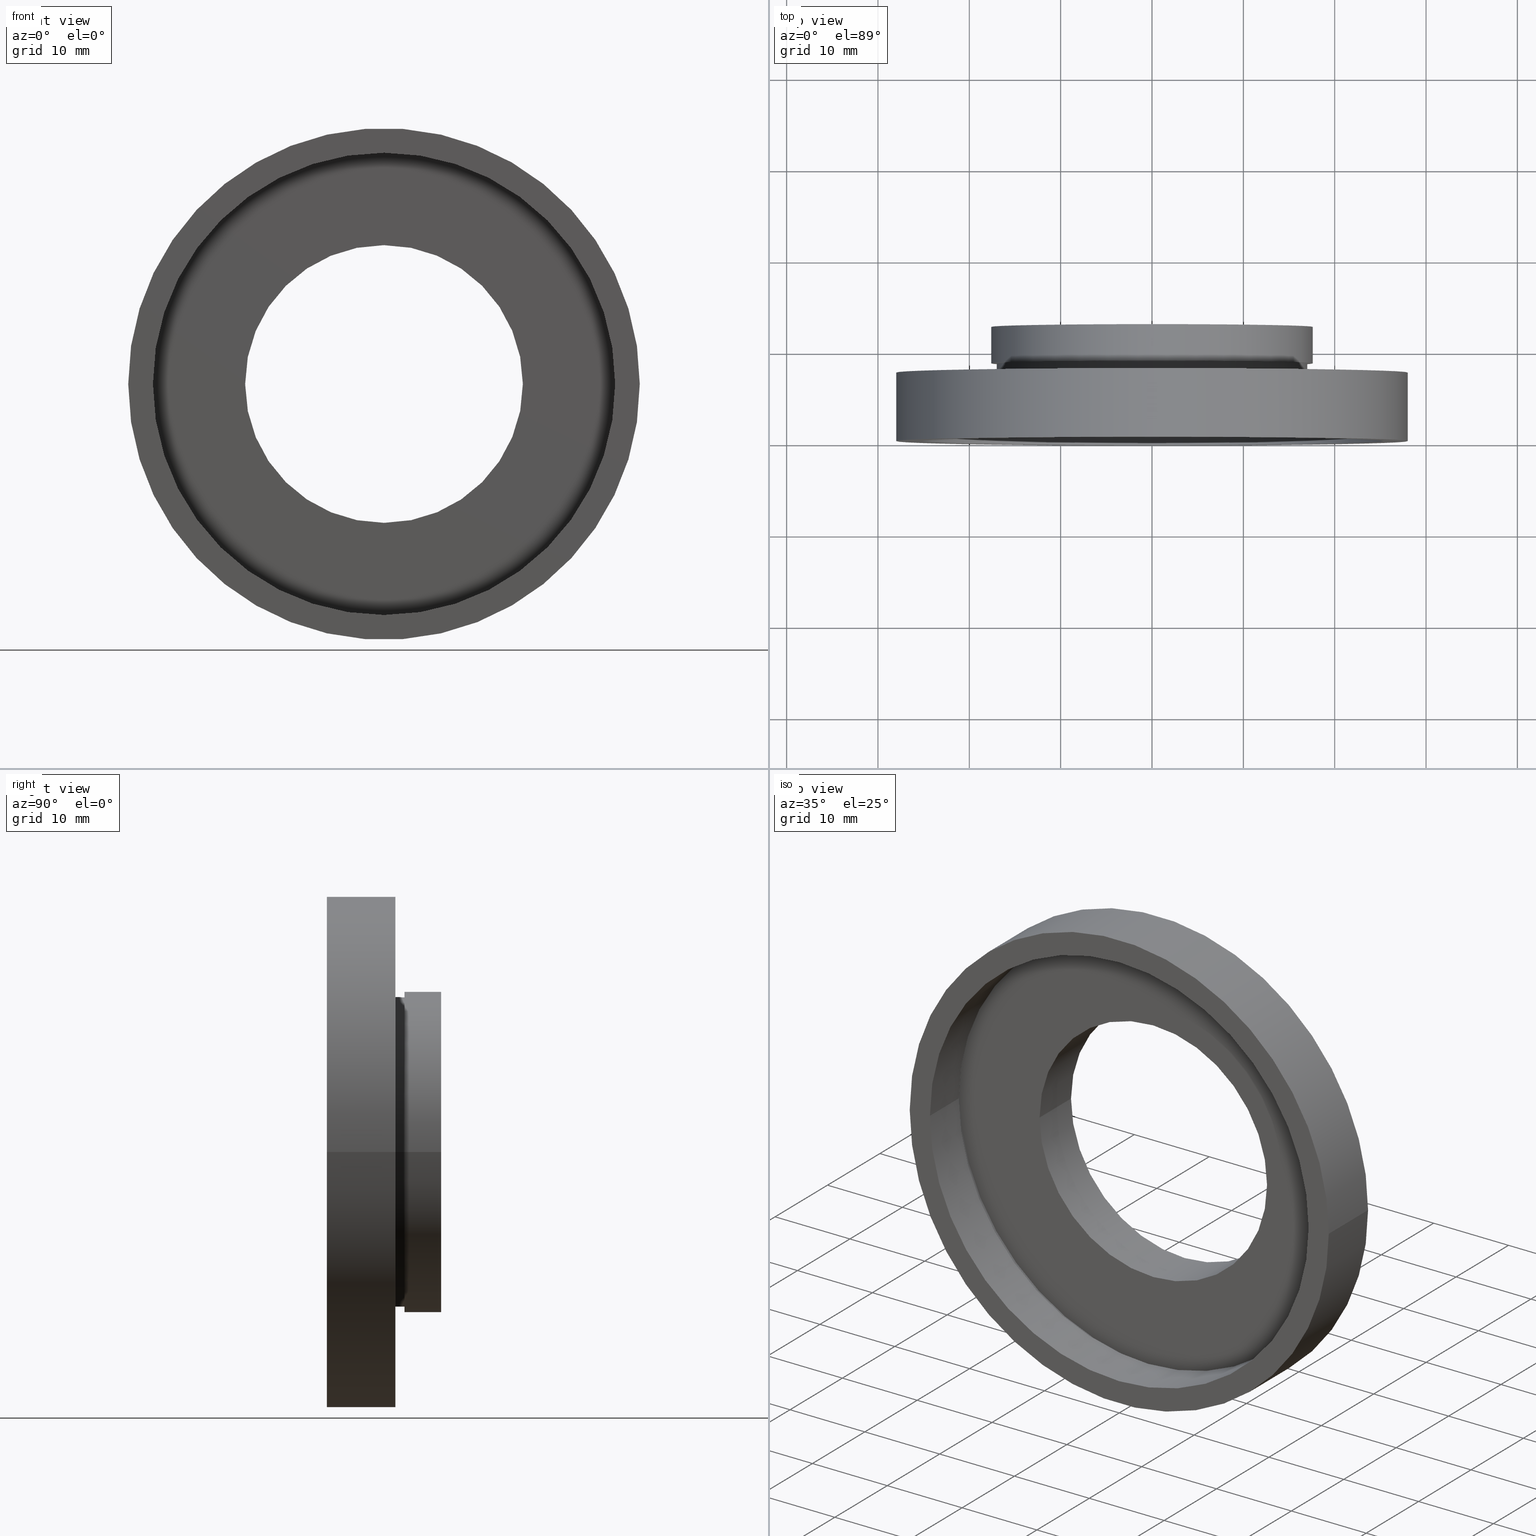
[diagram: canonical four-view strip — front | top / right | iso, engineering-drawing reading convention]
A machine part, canonical four-view strip (front | top / right | iso — engineering-drawing reading convention). The complete STEP part file that produces these views, byte-faithful:
ISO-10303-21;
HEADER;
FILE_DESCRIPTION (( 'STEP AP214' ),
    '1' );
FILE_NAME ('504098.STEP',
    '2019-10-08T03:12:28',
    ( '' ),
    ( '' ),
    'SwSTEP 2.0',
    'SolidWorks 2016',
    '' );
FILE_SCHEMA (( 'AUTOMOTIVE_DESIGN' ));
ENDSEC;

DATA;
#1 = CARTESIAN_POINT ( 'NONE',  ( 2.067940818438636500E-015, -3.469446951953614200E-015, 0.0000000000000000000 ) ) ;
#2 = ORIENTED_EDGE ( 'NONE', *, *, #328, .T. ) ;
#3 = ORIENTED_EDGE ( 'NONE', *, *, #522, .F. ) ;
#4 = ORIENTED_EDGE ( 'NONE', *, *, #616, .F. ) ;
#5 = CARTESIAN_POINT ( 'NONE',  ( -17.00000000000000000, 16.88601823708207300, 0.0000000000000000000 ) ) ;
#6 = SURFACE_STYLE_USAGE ( .BOTH. , #241 ) ;
#7 = DIRECTION ( 'NONE',  ( -1.000000000000000000, -1.336973777246094200E-016, 0.0000000000000000000 ) ) ;
#8 = ORIENTED_EDGE ( 'NONE', *, *, #285, .F. ) ;
#9 = ORIENTED_EDGE ( 'NONE', *, *, #412, .T. ) ;
#10 = DIRECTION ( 'NONE',  ( -1.000000000000000000, -2.282530889443167000E-016, 0.0000000000000000000 ) ) ;
#11 = PRESENTATION_STYLE_ASSIGNMENT (( #524 ) ) ;
#12 = VECTOR ( 'NONE', #71, 1000.000000000000000 ) ;
#13 = FACE_OUTER_BOUND ( 'NONE', #315, .T. ) ;
#14 = CARTESIAN_POINT ( 'NONE',  ( 5.371323195044474300E-016, 12.49999999999999600, 0.0000000000000000000 ) ) ;
#15 = AXIS2_PLACEMENT_3D ( 'NONE', #460, #477, #181 ) ;
#16 = DIRECTION ( 'NONE',  ( -1.224646799147351000E-016, 1.000000000000000000, -0.0000000000000000000 ) ) ;
#17 = ADVANCED_FACE ( 'NONE', ( #570, #301 ), #167, .F. ) ;
#18 =( GEOMETRIC_REPRESENTATION_CONTEXT ( 3 ) GLOBAL_UNCERTAINTY_ASSIGNED_CONTEXT ( ( #489 ) ) GLOBAL_UNIT_ASSIGNED_CONTEXT ( ( #327, #427, #429 ) ) REPRESENTATION_CONTEXT ( 'NONE', 'WORKASPACE' ) );
#19 = ORIENTED_EDGE ( 'NONE', *, *, #358, .T. ) ;
#20 = ORIENTED_EDGE ( 'NONE', *, *, #285, .T. ) ;
#21 =( NAMED_UNIT ( * ) PLANE_ANGLE_UNIT ( ) SI_UNIT ( $, .RADIAN. ) );
#22 = ORIENTED_EDGE ( 'NONE', *, *, #381, .F. ) ;
#23 = DIRECTION ( 'NONE',  ( -1.224646799147351000E-016, 1.000000000000000000, -0.0000000000000000000 ) ) ;
#24 =( GEOMETRIC_REPRESENTATION_CONTEXT ( 3 ) GLOBAL_UNCERTAINTY_ASSIGNED_CONTEXT ( ( #94 ) ) GLOBAL_UNIT_ASSIGNED_CONTEXT ( ( #93, #337, #432 ) ) REPRESENTATION_CONTEXT ( 'NONE', 'WORKASPACE' ) );
#25 = PRESENTATION_LAYER_ASSIGNMENT (  '', '', ( #86 ) ) ;
#26 = EDGE_CURVE ( 'NONE', #415, #554, #163, .T. ) ;
#27 = CARTESIAN_POINT ( 'NONE',  ( 25.94999999999999900, 6.499999999999999100, 3.177958443787381900E-015 ) ) ;
#28 = EDGE_LOOP ( 'NONE', ( #361, #82 ) ) ;
#29 = PRODUCT_DEFINITION ( 'δ֪', '', #217, #594 ) ;
#30 = CIRCLE ( 'NONE', #487, 17.00000000000000000 ) ;
#31 = FILL_AREA_STYLE ('',( #74 ) ) ;
#32 = CARTESIAN_POINT ( 'NONE',  ( 25.30000000000000400, 16.88601823708208000, 3.098356401842804300E-015 ) ) ;
#33 = ORIENTED_EDGE ( 'NONE', *, *, #604, .T. ) ;
#34 = ORIENTED_EDGE ( 'NONE', *, *, #513, .T. ) ;
#35 = ORIENTED_EDGE ( 'NONE', *, *, #531, .T. ) ;
#36 = ORIENTED_EDGE ( 'NONE', *, *, #295, .F. ) ;
#37 = PLANE ( 'NONE',  #158 ) ;
#38 = EDGE_LOOP ( 'NONE', ( #34, #43 ) ) ;
#39 = FILL_AREA_STYLE_COLOUR ( '', #613 ) ;
#40 = AXIS2_PLACEMENT_3D ( 'NONE', #517, #621, #126 ) ;
#41 = DIRECTION ( 'NONE',  ( -1.000000000000000000, -1.224646799147351200E-016, 0.0000000000000000000 ) ) ;
#42 = CARTESIAN_POINT ( 'NONE',  ( 5.371323195044474300E-016, 12.49999999999999600, 0.0000000000000000000 ) ) ;
#43 = ORIENTED_EDGE ( 'NONE', *, *, #171, .T. ) ;
#44 = DIRECTION ( 'NONE',  ( -1.000000000000000000, -1.141265444721583500E-016, 0.0000000000000000000 ) ) ;
#45 = LINE ( 'NONE', #606, #555 ) ;
#46 = FACE_OUTER_BOUND ( 'NONE', #119, .T. ) ;
#47 = DIRECTION ( 'NONE',  ( -1.224646799147351000E-016, 1.000000000000000000, -0.0000000000000000000 ) ) ;
#48 = DIRECTION ( 'NONE',  ( -1.000000000000000000, -1.224646799147351000E-016, 0.0000000000000000000 ) ) ;
#49 = PRODUCT_RELATED_PRODUCT_CATEGORY ( 'part', '', ( #581 ) ) ;
#50 = FILL_AREA_STYLE ('',( #333 ) ) ;
#51 = EDGE_LOOP ( 'NONE', ( #4, #331 ) ) ;
#52 = LINE ( 'NONE', #32, #268 ) ;
#53 = EDGE_CURVE ( 'NONE', #310, #161, #503, .T. ) ;
#54 = DIRECTION ( 'NONE',  ( -1.000000000000000000, -1.371322905910519200E-016, 0.0000000000000000000 ) ) ;
#55 = ADVANCED_FACE ( 'NONE', ( #173 ), #375, .T. ) ;
#56 = MECHANICAL_DESIGN_GEOMETRIC_PRESENTATION_REPRESENTATION (  '', ( #86 ), #383 ) ;
#57 = CARTESIAN_POINT ( 'NONE',  ( 15.20000000000000100, 6.499999999999999100, 1.861463134703977100E-015 ) ) ;
#58 = VECTOR ( 'NONE', #557, 1000.000000000000000 ) ;
#59 = EDGE_CURVE ( 'NONE', #307, #499, #445, .T. ) ;
#60 = LINE ( 'NONE', #395, #365 ) ;
#61 =( NAMED_UNIT ( * ) PLANE_ANGLE_UNIT ( ) SI_UNIT ( $, .RADIAN. ) );
#62 = DIRECTION ( 'NONE',  ( -1.224646799147351000E-016, 1.000000000000000000, -0.0000000000000000000 ) ) ;
#63 = ORIENTED_EDGE ( 'NONE', *, *, #467, .F. ) ;
#64 = CARTESIAN_POINT ( 'NONE',  ( -17.00000000000000000, 8.499999999999996400, 0.0000000000000000000 ) ) ;
#65 = FACE_BOUND ( 'NONE', #129, .T. ) ;
#66 = CYLINDRICAL_SURFACE ( 'NONE', #443, 25.30000000000000400 ) ;
#67 = CARTESIAN_POINT ( 'NONE',  ( 2.067940818438636500E-015, -3.469446951953614200E-015, 0.0000000000000000000 ) ) ;
#68 = PRESENTATION_LAYER_ASSIGNMENT (  '', '', ( #140 ) ) ;
#69 = DIRECTION ( 'NONE',  ( -1.224646799147351000E-016, 1.000000000000000000, -0.0000000000000000000 ) ) ;
#70 = AXIS2_PLACEMENT_3D ( 'NONE', #373, #47, #424 ) ;
#71 = DIRECTION ( 'NONE',  ( -1.224646799147351000E-016, 1.000000000000000000, -0.0000000000000000000 ) ) ;
#72 = ORIENTED_EDGE ( 'NONE', *, *, #276, .T. ) ;
#73 = CARTESIAN_POINT ( 'NONE',  ( 17.60000000000000100, 12.49999999999999800, 2.155378366499341600E-015 ) ) ;
#74 = FILL_AREA_STYLE_COLOUR ( '', #382 ) ;
#75 = DIRECTION ( 'NONE',  ( -1.224646799147351000E-016, 1.000000000000000000, 0.0000000000000000000 ) ) ;
#76 = FILL_AREA_STYLE_COLOUR ( '', #585 ) ;
#77 = ORIENTED_EDGE ( 'NONE', *, *, #295, .T. ) ;
#78 = ORIENTED_EDGE ( 'NONE', *, *, #590, .F. ) ;
#79 = LINE ( 'NONE', #411, #322 ) ;
#80 = DIRECTION ( 'NONE',  ( -1.000000000000000000, -9.856383386231857600E-017, 0.0000000000000000000 ) ) ;
#81 = DIRECTION ( 'NONE',  ( -1.224646799147351000E-016, 1.000000000000000000, -0.0000000000000000000 ) ) ;
#82 = ORIENTED_EDGE ( 'NONE', *, *, #456, .F. ) ;
#83 = ORIENTED_EDGE ( 'NONE', *, *, #501, .T. ) ;
#84 = SURFACE_STYLE_USAGE ( .BOTH. , #378 ) ;
#85 = EDGE_CURVE ( 'NONE', #258, #212, #292, .T. ) ;
#86 = STYLED_ITEM ( 'NONE', ( #11 ), #234 ) ;
#87 = CARTESIAN_POINT ( 'NONE',  ( 0.0000000000000000000, 16.88601823708207700, 0.0000000000000000000 ) ) ;
#88 = SURFACE_SIDE_STYLE ('',( #343 ) ) ;
#89 = DIRECTION ( 'NONE',  ( -1.224646799147351000E-016, 1.000000000000000000, -0.0000000000000000000 ) ) ;
#90 = ORIENTED_EDGE ( 'NONE', *, *, #467, .T. ) ;
#91 = FACE_BOUND ( 'NONE', #38, .T. ) ;
#92 = CIRCLE ( 'NONE', #164, 25.94999999999999900 ) ;
#93 =( LENGTH_UNIT ( ) NAMED_UNIT ( * ) SI_UNIT ( .MILLI., .METRE. ) );
#94 = UNCERTAINTY_MEASURE_WITH_UNIT (LENGTH_MEASURE( 1.000000000000000100E-005 ), #93, 'distance_accuracy_value', 'NONE');
#95 =( LENGTH_UNIT ( ) NAMED_UNIT ( * ) SI_UNIT ( .MILLI., .METRE. ) );
#96 =( GEOMETRIC_REPRESENTATION_CONTEXT ( 3 ) GLOBAL_UNCERTAINTY_ASSIGNED_CONTEXT ( ( #139 ) ) GLOBAL_UNIT_ASSIGNED_CONTEXT ( ( #457, #21, #314 ) ) REPRESENTATION_CONTEXT ( 'NONE', 'WORKASPACE' ) );
#97 = CARTESIAN_POINT ( 'NONE',  ( -15.20000000000000100, 12.49999999999999500, 0.0000000000000000000 ) ) ;
#98 = ORIENTED_EDGE ( 'NONE', *, *, #513, .F. ) ;
#99 = STYLED_ITEM ( 'NONE', ( #154 ), #174 ) ;
#100 = DIRECTION ( 'NONE',  ( -1.000000000000000000, -1.336973777246094200E-016, 0.0000000000000000000 ) ) ;
#101 = DIRECTION ( 'NONE',  ( -1.224646799147351000E-016, 1.000000000000000000, -0.0000000000000000000 ) ) ;
#102 = AXIS2_PLACEMENT_3D ( 'NONE', #67, #399, #447 ) ;
#103 = CARTESIAN_POINT ( 'NONE',  ( 1.149455719078123100E-015, 7.499999999999996400, 0.0000000000000000000 ) ) ;
#104 = SURFACE_SIDE_STYLE ('',( #480 ) ) ;
#105 =( GEOMETRIC_REPRESENTATION_CONTEXT ( 3 ) GLOBAL_UNCERTAINTY_ASSIGNED_CONTEXT ( ( #374 ) ) GLOBAL_UNIT_ASSIGNED_CONTEXT ( ( #610, #224, #218 ) ) REPRESENTATION_CONTEXT ( 'NONE', 'WORKASPACE' ) );
#106 = CARTESIAN_POINT ( 'NONE',  ( 28.00000000000000400, -4.043591434103126100E-017, 3.429011037612589700E-015 ) ) ;
#107 = EDGE_CURVE ( 'NONE', #252, #161, #207, .T. ) ;
#108 = CARTESIAN_POINT ( 'NONE',  ( 2.067940818438636500E-015, -3.469446951953614200E-015, 0.0000000000000000000 ) ) ;
#109 = AXIS2_PLACEMENT_3D ( 'NONE', #468, #462, #599 ) ;
#110 = VERTEX_POINT ( 'NONE', #566 ) ;
#111 = CARTESIAN_POINT ( 'NONE',  ( 17.60000000000000100, 16.88601823708208000, 2.155378366499341600E-015 ) ) ;
#112 = CYLINDRICAL_SURFACE ( 'NONE', #261, 17.60000000000000100 ) ;
#113 = CYLINDRICAL_SURFACE ( 'NONE', #574, 15.20000000000000100 ) ;
#114 = PRESENTATION_LAYER_ASSIGNMENT (  '', '', ( #434 ) ) ;
#115 = CARTESIAN_POINT ( 'NONE',  ( 0.0000000000000000000, 16.88601823708207700, 0.0000000000000000000 ) ) ;
#116 = EDGE_CURVE ( 'NONE', #275, #225, #572, .T. ) ;
#117 = DIRECTION ( 'NONE',  ( -1.224646799147351000E-016, 1.000000000000000000, -0.0000000000000000000 ) ) ;
#118 = EDGE_LOOP ( 'NONE', ( #461, #90, #349, #486 ) ) ;
#119 = EDGE_LOOP ( 'NONE', ( #584, #397, #540, #78 ) ) ;
#120 = CARTESIAN_POINT ( 'NONE',  ( 5.371323195044474300E-016, 12.49999999999999600, 0.0000000000000000000 ) ) ;
#121 = CARTESIAN_POINT ( 'NONE',  ( 1.026991039163387700E-015, 8.499999999999998200, 0.0000000000000000000 ) ) ;
#122 = ORIENTED_EDGE ( 'NONE', *, *, #456, .T. ) ;
#123 = CARTESIAN_POINT ( 'NONE',  ( 17.00000000000000000, 8.500000000000000000, 2.081899558550500300E-015 ) ) ;
#124 = DIRECTION ( 'NONE',  ( 1.000000000000000000, 1.224646799147351000E-016, 0.0000000000000000000 ) ) ;
#125 = SURFACE_STYLE_FILL_AREA ( #50 ) ;
#126 = DIRECTION ( 'NONE',  ( -1.000000000000000000, -1.371322905910519200E-016, 0.0000000000000000000 ) ) ;
#127 =( GEOMETRIC_REPRESENTATION_CONTEXT ( 3 ) GLOBAL_UNCERTAINTY_ASSIGNED_CONTEXT ( ( #458 ) ) GLOBAL_UNIT_ASSIGNED_CONTEXT ( ( #95, #483, #247 ) ) REPRESENTATION_CONTEXT ( 'NONE', 'WORKASPACE' ) );
#128 = DIRECTION ( 'NONE',  ( -1.224646799147351000E-016, 1.000000000000000000, -0.0000000000000000000 ) ) ;
#129 = EDGE_LOOP ( 'NONE', ( #20, #607 ) ) ;
#130 = AXIS2_PLACEMENT_3D ( 'NONE', #542, #151, #545 ) ;
#131 = LINE ( 'NONE', #213, #490 ) ;
#132 = VECTOR ( 'NONE', #294, 1000.000000000000000 ) ;
#133 = CARTESIAN_POINT ( 'NONE',  ( 1.149455719078122700E-015, 7.499999999999998200, 0.0000000000000000000 ) ) ;
#134 = EDGE_CURVE ( 'NONE', #161, #310, #453, .T. ) ;
#135 = EDGE_LOOP ( 'NONE', ( #500, #389 ) ) ;
#136 = ORIENTED_EDGE ( 'NONE', *, *, #85, .F. ) ;
#137 = FACE_BOUND ( 'NONE', #380, .T. ) ;
#138 = CARTESIAN_POINT ( 'NONE',  ( 15.20000000000000100, 12.49999999999999800, 1.861463134703977100E-015 ) ) ;
#139 = UNCERTAINTY_MEASURE_WITH_UNIT (LENGTH_MEASURE( 1.000000000000000100E-005 ), #457, 'distance_accuracy_value', 'NONE');
#140 = STYLED_ITEM ( 'NONE', ( #205 ), #420 ) ;
#141 = ADVANCED_FACE ( 'NONE', ( #316 ), #324, .T. ) ;
#142 = SURFACE_SIDE_STYLE ('',( #152 ) ) ;
#143 = ORIENTED_EDGE ( 'NONE', *, *, #276, .F. ) ;
#144 = EDGE_CURVE ( 'NONE', #499, #307, #190, .T. ) ;
#145 = ORIENTED_EDGE ( 'NONE', *, *, #358, .F. ) ;
#146 = FILL_AREA_STYLE ('',( #479 ) ) ;
#147 = COLOUR_RGB ( '',1.000000000000000000, 1.000000000000000000, 1.000000000000000000 ) ;
#148 = DIRECTION ( 'NONE',  ( -1.000000000000000000, -1.239088197126290800E-016, 0.0000000000000000000 ) ) ;
#149 = FILL_AREA_STYLE_COLOUR ( '', #418 ) ;
#150 = EDGE_LOOP ( 'NONE', ( #436, #396, #597, #168 ) ) ;
#151 = DIRECTION ( 'NONE',  ( -1.224646799147351000E-016, 1.000000000000000000, 0.0000000000000000000 ) ) ;
#152 = SURFACE_STYLE_FILL_AREA ( #202 ) ;
#153 = AXIS2_PLACEMENT_3D ( 'NONE', #14, #16, #580 ) ;
#154 = PRESENTATION_STYLE_ASSIGNMENT (( #84 ) ) ;
#155 =( LENGTH_UNIT ( ) NAMED_UNIT ( * ) SI_UNIT ( .MILLI., .METRE. ) );
#156 = STYLED_ITEM ( 'NONE', ( #255 ), #243 ) ;
#157 = DIRECTION ( 'NONE',  ( -1.000000000000000000, -1.971276677246371500E-016, 0.0000000000000000000 ) ) ;
#158 = AXIS2_PLACEMENT_3D ( 'NONE', #273, #421, #124 ) ;
#159 = PLANE ( 'NONE',  #130 ) ;
#160 = ORIENTED_EDGE ( 'NONE', *, *, #59, .T. ) ;
#161 = VERTEX_POINT ( 'NONE', #123 ) ;
#162 = CIRCLE ( 'NONE', #308, 17.60000000000000100 ) ;
#163 = LINE ( 'NONE', #223, #419 ) ;
#164 = AXIS2_PLACEMENT_3D ( 'NONE', #504, #117, #318 ) ;
#165 = DIRECTION ( 'NONE',  ( -1.000000000000000000, -1.141265444721583500E-016, 0.0000000000000000000 ) ) ;
#166 = CARTESIAN_POINT ( 'NONE',  ( 1.026991039163387700E-015, 8.499999999999998200, 0.0000000000000000000 ) ) ;
#167 = PLANE ( 'NONE',  #369 ) ;
#168 = ORIENTED_EDGE ( 'NONE', *, *, #548, .T. ) ;
#169 = ORIENTED_EDGE ( 'NONE', *, *, #264, .T. ) ;
#170 = FACE_BOUND ( 'NONE', #507, .T. ) ;
#171 = EDGE_CURVE ( 'NONE', #257, #546, #246, .T. ) ;
#172 = DIRECTION ( 'NONE',  ( -1.224646799147351000E-016, 1.000000000000000000, -0.0000000000000000000 ) ) ;
#173 = FACE_OUTER_BOUND ( 'NONE', #515, .T. ) ;
#174 = ADVANCED_FACE ( 'NONE', ( #559 ), #230, .F. ) ;
#175 = PLANE ( 'NONE',  #617 ) ;
#176 = DIRECTION ( 'NONE',  ( -1.224646799147351000E-016, 1.000000000000000000, -0.0000000000000000000 ) ) ;
#177 = STYLED_ITEM ( 'NONE', ( #229 ), #444 ) ;
#178 = ADVANCED_FACE ( 'NONE', ( #530 ), #602, .F. ) ;
#179 = ORIENTED_EDGE ( 'NONE', *, *, #228, .T. ) ;
#180 = CIRCLE ( 'NONE', #102, 27.99999999999999600 ) ;
#181 = DIRECTION ( 'NONE',  ( 1.000000000000000000, 0.0000000000000000000, 0.0000000000000000000 ) ) ;
#182 = FACE_BOUND ( 'NONE', #210, .T. ) ;
#183 = DIRECTION ( 'NONE',  ( -1.224646799147351000E-016, 1.000000000000000000, -0.0000000000000000000 ) ) ;
#184 = AXIS2_PLACEMENT_3D ( 'NONE', #618, #89, #232 ) ;
#185 = ORIENTED_EDGE ( 'NONE', *, *, #492, .F. ) ;
#186 = DIRECTION ( 'NONE',  ( -1.000000000000000000, -1.371322905910519200E-016, 0.0000000000000000000 ) ) ;
#187 = ORIENTED_EDGE ( 'NONE', *, *, #616, .T. ) ;
#188 = EDGE_LOOP ( 'NONE', ( #77, #596 ) ) ;
#189 = LINE ( 'NONE', #111, #58 ) ;
#190 = CIRCLE ( 'NONE', #352, 25.30000000000000400 ) ;
#191 = DIRECTION ( 'NONE',  ( -1.000000000000000000, -1.020425574104004100E-016, 0.0000000000000000000 ) ) ;
#192 = MECHANICAL_DESIGN_GEOMETRIC_PRESENTATION_REPRESENTATION (  '', ( #177 ), #280 ) ;
#193 = DIRECTION ( 'NONE',  ( -1.224646799147351000E-016, 1.000000000000000000, -0.0000000000000000000 ) ) ;
#194 = PRESENTATION_LAYER_ASSIGNMENT (  '', '', ( #156 ) ) ;
#195 = DIRECTION ( 'NONE',  ( 1.224646799147351000E-016, -1.000000000000000000, 0.0000000000000000000 ) ) ;
#196 = FACE_OUTER_BOUND ( 'NONE', #118, .T. ) ;
#197 = ORIENTED_EDGE ( 'NONE', *, *, #437, .F. ) ;
#198 = DIRECTION ( 'NONE',  ( -1.224646799147351000E-016, 1.000000000000000000, -0.0000000000000000000 ) ) ;
#199 = AXIS2_PLACEMENT_3D ( 'NONE', #511, #226, #466 ) ;
#200 = ORIENTED_EDGE ( 'NONE', *, *, #561, .T. ) ;
#201 = ORIENTED_EDGE ( 'NONE', *, *, #482, .T. ) ;
#202 = FILL_AREA_STYLE ('',( #149 ) ) ;
#203 = CYLINDRICAL_SURFACE ( 'NONE', #408, 17.00000000000000000 ) ;
#204 = MECHANICAL_DESIGN_GEOMETRIC_PRESENTATION_REPRESENTATION (  '', ( #140 ), #96 ) ;
#205 = PRESENTATION_STYLE_ASSIGNMENT (( #265 ) ) ;
#206 = DIRECTION ( 'NONE',  ( -1.000000000000000000, -1.971276677246371500E-016, 0.0000000000000000000 ) ) ;
#207 = LINE ( 'NONE', #474, #464 ) ;
#208 = STYLED_ITEM ( 'NONE', ( #323 ), #178 ) ;
#209 = SURFACE_STYLE_USAGE ( .BOTH. , #406 ) ;
#210 = EDGE_LOOP ( 'NONE', ( #539, #3 ) ) ;
#211 = CLOSED_SHELL ( 'NONE', ( #55, #485, #444, #306, #372, #178, #448, #243, #289, #400, #614, #174, #298, #303, #17, #231, #608, #141 ) ) ;
#212 = VERTEX_POINT ( 'NONE', #576 ) ;
#213 = CARTESIAN_POINT ( 'NONE',  ( -15.20000000000000100, 16.88601823708207300, 0.0000000000000000000 ) ) ;
#214 = AXIS2_PLACEMENT_3D ( 'NONE', #103, #536, #254 ) ;
#215 = DIRECTION ( 'NONE',  ( -1.224646799147351000E-016, 1.000000000000000000, -0.0000000000000000000 ) ) ;
#216 = AXIS2_PLACEMENT_3D ( 'NONE', #236, #379, #48 ) ;
#217 = PRODUCT_DEFINITION_FORMATION_WITH_SPECIFIED_SOURCE ( '�κ�', '', #581, .NOT_KNOWN. ) ;
#218 =( NAMED_UNIT ( * ) SI_UNIT ( $, .STERADIAN. ) SOLID_ANGLE_UNIT ( ) );
#219 = ORIENTED_EDGE ( 'NONE', *, *, #144, .T. ) ;
#220 = FACE_OUTER_BOUND ( 'NONE', #28, .T. ) ;
#221 = LINE ( 'NONE', #405, #311 ) ;
#222 = CARTESIAN_POINT ( 'NONE',  ( -17.00000000000000000, 7.499999999999996400, 0.0000000000000000000 ) ) ;
#223 = CARTESIAN_POINT ( 'NONE',  ( 27.99999999999999600, 16.88601823708208000, 3.429011037612588900E-015 ) ) ;
#224 =( NAMED_UNIT ( * ) PLANE_ANGLE_UNIT ( ) SI_UNIT ( $, .RADIAN. ) );
#225 = VERTEX_POINT ( 'NONE', #138 ) ;
#226 = DIRECTION ( 'NONE',  ( -1.224646799147351000E-016, 1.000000000000000000, -0.0000000000000000000 ) ) ;
#227 = LINE ( 'NONE', #266, #398 ) ;
#228 = EDGE_CURVE ( 'NONE', #549, #310, #558, .T. ) ;
#229 = PRESENTATION_STYLE_ASSIGNMENT (( #209 ) ) ;
#230 = CYLINDRICAL_SURFACE ( 'NONE', #242, 15.20000000000000100 ) ;
#231 = ADVANCED_FACE ( 'NONE', ( #392 ), #481, .T. ) ;
#232 = DIRECTION ( 'NONE',  ( -1.000000000000000000, -1.020425574104004100E-016, 0.0000000000000000000 ) ) ;
#233 = APPLICATION_CONTEXT ( 'automotive_design' ) ;
#234 = ADVANCED_BREP_SHAPE_REPRESENTATION ( '504098', ( #420, #15 ), #105 ) ;
#235 = AXIS2_PLACEMENT_3D ( 'NONE', #350, #195, #302 ) ;
#236 = CARTESIAN_POINT ( 'NONE',  ( 2.067940818438636500E-015, -3.469446951953614200E-015, 0.0000000000000000000 ) ) ;
#237 = EDGE_LOOP ( 'NONE', ( #297, #22 ) ) ;
#238 = DIRECTION ( 'NONE',  ( -1.224646799147351000E-016, 1.000000000000000000, -0.0000000000000000000 ) ) ;
#239 = AXIS2_PLACEMENT_3D ( 'NONE', #624, #484, #491 ) ;
#240 = PRODUCT_CONTEXT ( 'NONE', #233, 'mechanical' ) ;
#241 = SURFACE_SIDE_STYLE ('',( #277 ) ) ;
#242 = AXIS2_PLACEMENT_3D ( 'NONE', #521, #128, #473 ) ;
#243 = ADVANCED_FACE ( 'NONE', ( #587 ), #66, .F. ) ;
#244 = EDGE_LOOP ( 'NONE', ( #136, #200, #219, #321 ) ) ;
#245 = FACE_OUTER_BOUND ( 'NONE', #150, .T. ) ;
#246 = CIRCLE ( 'NONE', #384, 15.19999999999999900 ) ;
#247 =( NAMED_UNIT ( * ) SI_UNIT ( $, .STERADIAN. ) SOLID_ANGLE_UNIT ( ) );
#248 = PRESENTATION_LAYER_ASSIGNMENT (  '', '', ( #177 ) ) ;
#249 = DIRECTION ( 'NONE',  ( -1.224646799147351000E-016, 1.000000000000000000, -0.0000000000000000000 ) ) ;
#250 = EDGE_CURVE ( 'NONE', #575, #320, #556, .T. ) ;
#251 = ORIENTED_EDGE ( 'NONE', *, *, #144, .F. ) ;
#252 = VERTEX_POINT ( 'NONE', #296 ) ;
#253 = FACE_OUTER_BOUND ( 'NONE', #237, .T. ) ;
#254 = DIRECTION ( 'NONE',  ( -1.000000000000000000, -1.239088197126290800E-016, 0.0000000000000000000 ) ) ;
#255 = PRESENTATION_STYLE_ASSIGNMENT (( #431 ) ) ;
#256 = CARTESIAN_POINT ( 'NONE',  ( -27.99999999999999300, -6.898457989566196800E-015, 0.0000000000000000000 ) ) ;
#257 = VERTEX_POINT ( 'NONE', #57 ) ;
#258 = VERTEX_POINT ( 'NONE', #623 ) ;
#259 = DIRECTION ( 'NONE',  ( -1.224646799147351000E-016, 1.000000000000000000, -0.0000000000000000000 ) ) ;
#260 = EDGE_LOOP ( 'NONE', ( #533, #72, #179, #388 ) ) ;
#261 = AXIS2_PLACEMENT_3D ( 'NONE', #115, #595, #157 ) ;
#262 = COLOUR_RGB ( '',1.000000000000000000, 1.000000000000000000, 1.000000000000000000 ) ;
#263 = SURFACE_SIDE_STYLE ('',( #286 ) ) ;
#264 = EDGE_CURVE ( 'NONE', #549, #252, #30, .T. ) ;
#265 = SURFACE_STYLE_USAGE ( .BOTH. , #263 ) ;
#266 = CARTESIAN_POINT ( 'NONE',  ( -27.99999999999999600, 16.88601823708207300, 0.0000000000000000000 ) ) ;
#267 = EDGE_LOOP ( 'NONE', ( #187, #35, #36, #197 ) ) ;
#268 = VECTOR ( 'NONE', #552, 1000.000000000000000 ) ;
#269 = CARTESIAN_POINT ( 'NONE',  ( 25.30000000000000400, 5.499999999999998200, 3.098356401842804300E-015 ) ) ;
#270 = SURFACE_STYLE_FILL_AREA ( #407 ) ;
#271 = AXIS2_PLACEMENT_3D ( 'NONE', #498, #101, #299 ) ;
#272 = COLOUR_RGB ( '',1.000000000000000000, 1.000000000000000000, 1.000000000000000000 ) ;
#273 = CARTESIAN_POINT ( 'NONE',  ( 17.00000000000000000, 7.499999999999999100, 0.0000000000000000000 ) ) ;
#274 = AXIS2_PLACEMENT_3D ( 'NONE', #519, #510, #553 ) ;
#275 = VERTEX_POINT ( 'NONE', #97 ) ;
#276 = EDGE_CURVE ( 'NONE', #252, #549, #312, .T. ) ;
#277 = SURFACE_STYLE_FILL_AREA ( #525 ) ;
#278 = FILL_AREA_STYLE ('',( #39 ) ) ;
#279 = CARTESIAN_POINT ( 'NONE',  ( -28.00000000000000000, 7.499999999999992900, 0.0000000000000000000 ) ) ;
#280 =( GEOMETRIC_REPRESENTATION_CONTEXT ( 3 ) GLOBAL_UNCERTAINTY_ASSIGNED_CONTEXT ( ( #583 ) ) GLOBAL_UNIT_ASSIGNED_CONTEXT ( ( #155, #544, #356 ) ) REPRESENTATION_CONTEXT ( 'NONE', 'WORKASPACE' ) );
#281 = UNCERTAINTY_MEASURE_WITH_UNIT (LENGTH_MEASURE( 1.000000000000000100E-005 ), #579, 'distance_accuracy_value', 'NONE');
#282 = ORIENTED_EDGE ( 'NONE', *, *, #59, .F. ) ;
#283 = CIRCLE ( 'NONE', #416, 17.60000000000000100 ) ;
#284 = CARTESIAN_POINT ( 'NONE',  ( 0.0000000000000000000, 16.88601823708207700, 0.0000000000000000000 ) ) ;
#285 = EDGE_CURVE ( 'NONE', #212, #258, #509, .T. ) ;
#286 = SURFACE_STYLE_FILL_AREA ( #31 ) ;
#287 = DIRECTION ( 'NONE',  ( -1.224646799147351000E-016, 1.000000000000000000, -0.0000000000000000000 ) ) ;
#288 = DIRECTION ( 'NONE',  ( -1.224646799147351000E-016, 1.000000000000000000, -0.0000000000000000000 ) ) ;
#289 = ADVANCED_FACE ( 'NONE', ( #137, #622 ), #527, .F. ) ;
#290 = VERTEX_POINT ( 'NONE', #339 ) ;
#291 = EDGE_LOOP ( 'NONE', ( #342, #514 ) ) ;
#292 = CIRCLE ( 'NONE', #216, 25.30000000000000100 ) ;
#293 = AXIS2_PLACEMENT_3D ( 'NONE', #390, #288, #100 ) ;
#294 = DIRECTION ( 'NONE',  ( -1.224646799147351000E-016, 1.000000000000000000, -0.0000000000000000000 ) ) ;
#295 = EDGE_CURVE ( 'NONE', #469, #409, #541, .T. ) ;
#296 = CARTESIAN_POINT ( 'NONE',  ( 17.00000000000000000, 7.500000000000000000, 2.081899558550500300E-015 ) ) ;
#297 = ORIENTED_EDGE ( 'NONE', *, *, #501, .F. ) ;
#298 = ADVANCED_FACE ( 'NONE', ( #182, #601 ), #582, .F. ) ;
#299 = DIRECTION ( 'NONE',  ( -1.000000000000000000, -1.336973777246094200E-016, 0.0000000000000000000 ) ) ;
#300 = CIRCLE ( 'NONE', #589, 28.00000000000000000 ) ;
#301 = FACE_BOUND ( 'NONE', #135, .T. ) ;
#302 = DIRECTION ( 'NONE',  ( 1.000000000000000000, 1.224646799147351000E-016, 0.0000000000000000000 ) ) ;
#303 = ADVANCED_FACE ( 'NONE', ( #46 ), #496, .T. ) ;
#304 = AXIS2_PLACEMENT_3D ( 'NONE', #120, #172, #165 ) ;
#305 = CARTESIAN_POINT ( 'NONE',  ( 1.149455719078123100E-015, 7.499999999999996400, 0.0000000000000000000 ) ) ;
#306 = ADVANCED_FACE ( 'NONE', ( #196 ), #113, .F. ) ;
#307 = VERTEX_POINT ( 'NONE', #537 ) ;
#308 = AXIS2_PLACEMENT_3D ( 'NONE', #121, #371, #80 ) ;
#309 = ORIENTED_EDGE ( 'NONE', *, *, #561, .F. ) ;
#310 = VERTEX_POINT ( 'NONE', #64 ) ;
#311 = VECTOR ( 'NONE', #215, 1000.000000000000000 ) ;
#312 = CIRCLE ( 'NONE', #335, 17.00000000000000000 ) ;
#313 = DIRECTION ( 'NONE',  ( -1.000000000000000000, -2.040851148208008200E-016, 0.0000000000000000000 ) ) ;
#314 =( NAMED_UNIT ( * ) SI_UNIT ( $, .STERADIAN. ) SOLID_ANGLE_UNIT ( ) );
#315 = EDGE_LOOP ( 'NONE', ( #169, #619, #450, #440 ) ) ;
#316 = FACE_OUTER_BOUND ( 'NONE', #564, .T. ) ;
#317 = AXIS2_PLACEMENT_3D ( 'NONE', #284, #329, #612 ) ;
#318 = DIRECTION ( 'NONE',  ( -1.000000000000000000, -1.336973777246094200E-016, 0.0000000000000000000 ) ) ;
#319 = CARTESIAN_POINT ( 'NONE',  ( 17.60000000000000100, 8.500000000000000000, 0.0000000000000000000 ) ) ;
#320 = VERTEX_POINT ( 'NONE', #348 ) ;
#321 = ORIENTED_EDGE ( 'NONE', *, *, #412, .F. ) ;
#322 = VECTOR ( 'NONE', #366, 1000.000000000000000 ) ;
#323 = PRESENTATION_STYLE_ASSIGNMENT (( #6 ) ) ;
#324 = CYLINDRICAL_SURFACE ( 'NONE', #394, 27.99999999999999600 ) ;
#325 = MECHANICAL_DESIGN_GEOMETRIC_PRESENTATION_REPRESENTATION (  '', ( #434 ), #355 ) ;
#326 = CARTESIAN_POINT ( 'NONE',  ( -15.19999999999999800, 6.499999999999995600, 0.0000000000000000000 ) ) ;
#327 =( LENGTH_UNIT ( ) NAMED_UNIT ( * ) SI_UNIT ( .MILLI., .METRE. ) );
#328 = EDGE_CURVE ( 'NONE', #554, #578, #300, .T. ) ;
#329 = DIRECTION ( 'NONE',  ( -1.224646799147351000E-016, 1.000000000000000000, -0.0000000000000000000 ) ) ;
#330 = CARTESIAN_POINT ( 'NONE',  ( 0.0000000000000000000, 16.88601823708207700, 0.0000000000000000000 ) ) ;
#331 = ORIENTED_EDGE ( 'NONE', *, *, #577, .F. ) ;
#332 = APPLICATION_PROTOCOL_DEFINITION ( 'draft international standard', 'automotive_design', 1998, #568 ) ;
#333 = FILL_AREA_STYLE_COLOUR ( '', #262 ) ;
#334 = CYLINDRICAL_SURFACE ( 'NONE', #271, 25.94999999999999900 ) ;
#335 = AXIS2_PLACEMENT_3D ( 'NONE', #573, #385, #191 ) ;
#336 = SURFACE_STYLE_FILL_AREA ( #278 ) ;
#337 =( NAMED_UNIT ( * ) PLANE_ANGLE_UNIT ( ) SI_UNIT ( $, .RADIAN. ) );
#338 = PRESENTATION_LAYER_ASSIGNMENT (  '', '', ( #208 ) ) ;
#339 = CARTESIAN_POINT ( 'NONE',  ( 17.60000000000000100, 8.500000000000000000, 2.155378366499341600E-015 ) ) ;
#340 = DIRECTION ( 'NONE',  ( -1.224646799147351000E-016, 1.000000000000000000, -0.0000000000000000000 ) ) ;
#341 = EDGE_LOOP ( 'NONE', ( #63, #98, #547, #543 ) ) ;
#342 = ORIENTED_EDGE ( 'NONE', *, *, #250, .T. ) ;
#343 = SURFACE_STYLE_FILL_AREA ( #376 ) ;
#344 = DIRECTION ( 'NONE',  ( -1.000000000000000000, -2.040851148208008200E-016, 0.0000000000000000000 ) ) ;
#345 =( GEOMETRIC_REPRESENTATION_CONTEXT ( 3 ) GLOBAL_UNCERTAINTY_ASSIGNED_CONTEXT ( ( #454 ) ) GLOBAL_UNIT_ASSIGNED_CONTEXT ( ( #588, #61, #535 ) ) REPRESENTATION_CONTEXT ( 'NONE', 'WORKASPACE' ) );
#346 = UNCERTAINTY_MEASURE_WITH_UNIT (LENGTH_MEASURE( 1.000000000000000100E-005 ), #523, 'distance_accuracy_value', 'NONE');
#347 = AXIS2_PLACEMENT_3D ( 'NONE', #42, #609, #44 ) ;
#348 = CARTESIAN_POINT ( 'NONE',  ( 25.94999999999999900, 5.499999999999998200, 3.177958443787381900E-015 ) ) ;
#349 = ORIENTED_EDGE ( 'NONE', *, *, #522, .T. ) ;
#350 = CARTESIAN_POINT ( 'NONE',  ( 15.20000000000000100, 12.49999999999999800, 0.0000000000000000000 ) ) ;
#351 = CIRCLE ( 'NONE', #274, 25.94999999999999900 ) ;
#352 = AXIS2_PLACEMENT_3D ( 'NONE', #470, #287, #186 ) ;
#353 = DIRECTION ( 'NONE',  ( -1.224646799147351000E-016, 1.000000000000000000, -0.0000000000000000000 ) ) ;
#354 = EDGE_LOOP ( 'NONE', ( #19, #2 ) ) ;
#355 =( GEOMETRIC_REPRESENTATION_CONTEXT ( 3 ) GLOBAL_UNCERTAINTY_ASSIGNED_CONTEXT ( ( #281 ) ) GLOBAL_UNIT_ASSIGNED_CONTEXT ( ( #579, #446, #586 ) ) REPRESENTATION_CONTEXT ( 'NONE', 'WORKASPACE' ) );
#356 =( NAMED_UNIT ( * ) SI_UNIT ( $, .STERADIAN. ) SOLID_ANGLE_UNIT ( ) );
#357 = LINE ( 'NONE', #592, #12 ) ;
#358 = EDGE_CURVE ( 'NONE', #578, #554, #410, .T. ) ;
#359 = FILL_AREA_STYLE_COLOUR ( '', #452 ) ;
#360 = CARTESIAN_POINT ( 'NONE',  ( -17.60000000000000100, 12.49999999999999500, 0.0000000000000000000 ) ) ;
#361 = ORIENTED_EDGE ( 'NONE', *, *, #548, .F. ) ;
#362 = VERTEX_POINT ( 'NONE', #493 ) ;
#363 = MECHANICAL_DESIGN_GEOMETRIC_PRESENTATION_REPRESENTATION (  '', ( #156 ), #24 ) ;
#364 = CIRCLE ( 'NONE', #391, 25.94999999999999900 ) ;
#365 = VECTOR ( 'NONE', #23, 1000.000000000000000 ) ;
#366 = DIRECTION ( 'NONE',  ( -1.224646799147351000E-016, 1.000000000000000000, -0.0000000000000000000 ) ) ;
#367 = DIRECTION ( 'NONE',  ( -1.000000000000000000, -9.856383386231857600E-017, 0.0000000000000000000 ) ) ;
#368 = PRESENTATION_LAYER_ASSIGNMENT (  '', '', ( #565 ) ) ;
#369 = AXIS2_PLACEMENT_3D ( 'NONE', #319, #512, #508 ) ;
#370 = VERTEX_POINT ( 'NONE', #256 ) ;
#371 = DIRECTION ( 'NONE',  ( -1.224646799147351000E-016, 1.000000000000000000, -0.0000000000000000000 ) ) ;
#372 = ADVANCED_FACE ( 'NONE', ( #442 ), #600, .F. ) ;
#373 = CARTESIAN_POINT ( 'NONE',  ( 1.026991039163387700E-015, 8.499999999999998200, 0.0000000000000000000 ) ) ;
#374 = UNCERTAINTY_MEASURE_WITH_UNIT (LENGTH_MEASURE( 1.000000000000000100E-005 ), #610, 'distance_accuracy_value', 'NONE');
#375 = CYLINDRICAL_SURFACE ( 'NONE', #317, 27.99999999999999600 ) ;
#376 = FILL_AREA_STYLE ('',( #76 ) ) ;
#377 = AXIS2_PLACEMENT_3D ( 'NONE', #108, #560, #41 ) ;
#378 = SURFACE_SIDE_STYLE ('',( #336 ) ) ;
#379 = DIRECTION ( 'NONE',  ( -1.224646799147351000E-016, 1.000000000000000000, -0.0000000000000000000 ) ) ;
#380 = EDGE_LOOP ( 'NONE', ( #282, #251 ) ) ;
#381 = EDGE_CURVE ( 'NONE', #415, #370, #180, .T. ) ;
#382 = COLOUR_RGB ( '',1.000000000000000000, 1.000000000000000000, 1.000000000000000000 ) ;
#383 =( GEOMETRIC_REPRESENTATION_CONTEXT ( 3 ) GLOBAL_UNCERTAINTY_ASSIGNED_CONTEXT ( ( #346 ) ) GLOBAL_UNIT_ASSIGNED_CONTEXT ( ( #523, #430, #526 ) ) REPRESENTATION_CONTEXT ( 'NONE', 'WORKASPACE' ) );
#384 = AXIS2_PLACEMENT_3D ( 'NONE', #471, #183, #563 ) ;
#385 = DIRECTION ( 'NONE',  ( -1.224646799147351000E-016, 1.000000000000000000, -0.0000000000000000000 ) ) ;
#386 = DIRECTION ( 'NONE',  ( -1.224646799147351000E-016, 1.000000000000000000, -0.0000000000000000000 ) ) ;
#387 = ORIENTED_EDGE ( 'NONE', *, *, #571, .F. ) ;
#388 = ORIENTED_EDGE ( 'NONE', *, *, #134, .F. ) ;
#389 = ORIENTED_EDGE ( 'NONE', *, *, #134, .T. ) ;
#390 = CARTESIAN_POINT ( 'NONE',  ( 1.394385078907593400E-015, 5.499999999999994700, 0.0000000000000000000 ) ) ;
#391 = AXIS2_PLACEMENT_3D ( 'NONE', #502, #69, #593 ) ;
#392 = FACE_OUTER_BOUND ( 'NONE', #260, .T. ) ;
#393 = DIRECTION ( 'NONE',  ( -1.000000000000000000, -1.371322905910519200E-016, 0.0000000000000000000 ) ) ;
#394 = AXIS2_PLACEMENT_3D ( 'NONE', #330, #567, #423 ) ;
#395 = CARTESIAN_POINT ( 'NONE',  ( -25.30000000000000400, 16.88601823708207300, 0.0000000000000000000 ) ) ;
#396 = ORIENTED_EDGE ( 'NONE', *, *, #250, .F. ) ;
#397 = ORIENTED_EDGE ( 'NONE', *, *, #577, .T. ) ;
#398 = VECTOR ( 'NONE', #459, 1000.000000000000000 ) ;
#399 = DIRECTION ( 'NONE',  ( -1.224646799147351000E-016, 1.000000000000000000, -0.0000000000000000000 ) ) ;
#400 = ADVANCED_FACE ( 'NONE', ( #245 ), #334, .F. ) ;
#401 = CARTESIAN_POINT ( 'NONE',  ( 0.0000000000000000000, 16.88601823708207700, 0.0000000000000000000 ) ) ;
#402 = ORIENTED_EDGE ( 'NONE', *, *, #264, .F. ) ;
#403 = ORIENTED_EDGE ( 'NONE', *, *, #26, .F. ) ;
#404 = MECHANICAL_DESIGN_GEOMETRIC_PRESENTATION_REPRESENTATION (  '', ( #208 ), #127 ) ;
#405 = CARTESIAN_POINT ( 'NONE',  ( 15.20000000000000100, 16.88601823708208000, 1.861463134703977100E-015 ) ) ;
#406 = SURFACE_SIDE_STYLE ('',( #270 ) ) ;
#407 = FILL_AREA_STYLE ('',( #359 ) ) ;
#408 = AXIS2_PLACEMENT_3D ( 'NONE', #506, #259, #313 ) ;
#409 = VERTEX_POINT ( 'NONE', #73 ) ;
#410 = CIRCLE ( 'NONE', #214, 28.00000000000000000 ) ;
#411 = CARTESIAN_POINT ( 'NONE',  ( 25.94999999999999900, 16.88601823708208000, 3.177958443787381900E-015 ) ) ;
#412 = EDGE_CURVE ( 'NONE', #212, #307, #60, .T. ) ;
#413 = CARTESIAN_POINT ( 'NONE',  ( 15.20000000000000100, 6.499999999999998200, 0.0000000000000000000 ) ) ;
#414 = ORIENTED_EDGE ( 'NONE', *, *, #26, .T. ) ;
#415 = VERTEX_POINT ( 'NONE', #106 ) ;
#416 = AXIS2_PLACEMENT_3D ( 'NONE', #166, #463, #367 ) ;
#417 = DIRECTION ( 'NONE',  ( -1.224646799147351000E-016, 1.000000000000000000, -0.0000000000000000000 ) ) ;
#418 = COLOUR_RGB ( '',1.000000000000000000, 1.000000000000000000, 1.000000000000000000 ) ;
#419 = VECTOR ( 'NONE', #417, 1000.000000000000000 ) ;
#420 = MANIFOLD_SOLID_BREP ( '��ת1', #211 ) ;
#421 = DIRECTION ( 'NONE',  ( 1.224646799147351000E-016, -1.000000000000000000, 0.0000000000000000000 ) ) ;
#422 = MECHANICAL_DESIGN_GEOMETRIC_PRESENTATION_REPRESENTATION (  '', ( #565 ), #345 ) ;
#423 = DIRECTION ( 'NONE',  ( -1.000000000000000000, -1.239088197126290800E-016, 0.0000000000000000000 ) ) ;
#424 = DIRECTION ( 'NONE',  ( -1.000000000000000000, -1.020425574104004100E-016, 0.0000000000000000000 ) ) ;
#425 = EDGE_CURVE ( 'NONE', #546, #275, #131, .T. ) ;
#426 = VERTEX_POINT ( 'NONE', #27 ) ;
#427 =( NAMED_UNIT ( * ) PLANE_ANGLE_UNIT ( ) SI_UNIT ( $, .RADIAN. ) );
#428 = PRESENTATION_STYLE_ASSIGNMENT (( #449 ) ) ;
#429 =( NAMED_UNIT ( * ) SI_UNIT ( $, .STERADIAN. ) SOLID_ANGLE_UNIT ( ) );
#430 =( NAMED_UNIT ( * ) PLANE_ANGLE_UNIT ( ) SI_UNIT ( $, .RADIAN. ) );
#431 = SURFACE_STYLE_USAGE ( .BOTH. , #438 ) ;
#432 =( NAMED_UNIT ( * ) SI_UNIT ( $, .STERADIAN. ) SOLID_ANGLE_UNIT ( ) );
#433 = ORIENTED_EDGE ( 'NONE', *, *, #328, .F. ) ;
#434 = STYLED_ITEM ( 'NONE', ( #428 ), #303 ) ;
#435 = CARTESIAN_POINT ( 'NONE',  ( 0.0000000000000000000, 16.88601823708207700, 0.0000000000000000000 ) ) ;
#436 = ORIENTED_EDGE ( 'NONE', *, *, #604, .F. ) ;
#437 = EDGE_CURVE ( 'NONE', #110, #469, #357, .T. ) ;
#438 = SURFACE_SIDE_STYLE ('',( #125 ) ) ;
#439 = DIRECTION ( 'NONE',  ( -1.000000000000000000, -1.224646799147351000E-016, 0.0000000000000000000 ) ) ;
#440 = ORIENTED_EDGE ( 'NONE', *, *, #228, .F. ) ;
#441 = CARTESIAN_POINT ( 'NONE',  ( 0.0000000000000000000, 16.88601823708207700, 0.0000000000000000000 ) ) ;
#442 = FACE_OUTER_BOUND ( 'NONE', #476, .T. ) ;
#443 = AXIS2_PLACEMENT_3D ( 'NONE', #435, #238, #393 ) ;
#444 = ADVANCED_FACE ( 'NONE', ( #495 ), #112, .T. ) ;
#445 = CIRCLE ( 'NONE', #40, 25.30000000000000400 ) ;
#446 =( NAMED_UNIT ( * ) PLANE_ANGLE_UNIT ( ) SI_UNIT ( $, .RADIAN. ) );
#447 = DIRECTION ( 'NONE',  ( -1.000000000000000000, -1.224646799147351200E-016, 0.0000000000000000000 ) ) ;
#448 = ADVANCED_FACE ( 'NONE', ( #253, #65 ), #159, .F. ) ;
#449 = SURFACE_STYLE_USAGE ( .BOTH. , #104 ) ;
#450 = ORIENTED_EDGE ( 'NONE', *, *, #53, .F. ) ;
#451 = PRESENTATION_LAYER_ASSIGNMENT (  '', '', ( #99 ) ) ;
#452 = COLOUR_RGB ( '',1.000000000000000000, 1.000000000000000000, 1.000000000000000000 ) ;
#453 = CIRCLE ( 'NONE', #70, 17.00000000000000000 ) ;
#454 = UNCERTAINTY_MEASURE_WITH_UNIT (LENGTH_MEASURE( 1.000000000000000100E-005 ), #588, 'distance_accuracy_value', 'NONE');
#455 = PRODUCT_DEFINITION_SHAPE ( 'NONE', 'NONE',  #29 ) ;
#456 = EDGE_CURVE ( 'NONE', #426, #362, #92, .T. ) ;
#457 =( LENGTH_UNIT ( ) NAMED_UNIT ( * ) SI_UNIT ( .MILLI., .METRE. ) );
#458 = UNCERTAINTY_MEASURE_WITH_UNIT (LENGTH_MEASURE( 1.000000000000000100E-005 ), #95, 'distance_accuracy_value', 'NONE');
#459 = DIRECTION ( 'NONE',  ( -1.224646799147351000E-016, 1.000000000000000000, -0.0000000000000000000 ) ) ;
#460 = CARTESIAN_POINT ( 'NONE',  ( 0.0000000000000000000, 0.0000000000000000000, 0.0000000000000000000 ) ) ;
#461 = ORIENTED_EDGE ( 'NONE', *, *, #171, .F. ) ;
#462 = DIRECTION ( 'NONE',  ( -1.224646799147351000E-016, 1.000000000000000000, -0.0000000000000000000 ) ) ;
#463 = DIRECTION ( 'NONE',  ( -1.224646799147351000E-016, 1.000000000000000000, -0.0000000000000000000 ) ) ;
#464 = VECTOR ( 'NONE', #176, 1000.000000000000000 ) ;
#465 = AXIS2_PLACEMENT_3D ( 'NONE', #401, #249, #7 ) ;
#466 = DIRECTION ( 'NONE',  ( -1.000000000000000000, -1.141265444721583800E-016, 0.0000000000000000000 ) ) ;
#467 = EDGE_CURVE ( 'NONE', #257, #225, #221, .T. ) ;
#468 = CARTESIAN_POINT ( 'NONE',  ( 5.371323195044474300E-016, 12.49999999999999600, 0.0000000000000000000 ) ) ;
#469 = VERTEX_POINT ( 'NONE', #360 ) ;
#470 = CARTESIAN_POINT ( 'NONE',  ( 1.394385078907593400E-015, 5.499999999999994700, 0.0000000000000000000 ) ) ;
#471 = CARTESIAN_POINT ( 'NONE',  ( 1.271920398992858000E-015, 6.499999999999997300, 0.0000000000000000000 ) ) ;
#472 = AXIS2_PLACEMENT_3D ( 'NONE', #87, #81, #54 ) ;
#473 = DIRECTION ( 'NONE',  ( -1.000000000000000000, -2.282530889443167000E-016, 0.0000000000000000000 ) ) ;
#474 = CARTESIAN_POINT ( 'NONE',  ( 17.00000000000000000, 16.88601823708208000, 2.081899558550500300E-015 ) ) ;
#475 = ORIENTED_EDGE ( 'NONE', *, *, #482, .F. ) ;
#476 = EDGE_LOOP ( 'NONE', ( #185, #33, #122, #387 ) ) ;
#477 = DIRECTION ( 'NONE',  ( 0.0000000000000000000, 0.0000000000000000000, 1.000000000000000000 ) ) ;
#478 = CIRCLE ( 'NONE', #304, 15.20000000000000100 ) ;
#479 = FILL_AREA_STYLE_COLOUR ( '', #147 ) ;
#480 = SURFACE_STYLE_FILL_AREA ( #146 ) ;
#481 = CYLINDRICAL_SURFACE ( 'NONE', #505, 17.00000000000000000 ) ;
#482 = EDGE_CURVE ( 'NONE', #370, #578, #227, .T. ) ;
#483 =( NAMED_UNIT ( * ) PLANE_ANGLE_UNIT ( ) SI_UNIT ( $, .RADIAN. ) );
#484 = DIRECTION ( 'NONE',  ( 1.224646799147351000E-016, -1.000000000000000000, 0.0000000000000000000 ) ) ;
#485 = ADVANCED_FACE ( 'NONE', ( #13 ), #203, .T. ) ;
#486 = ORIENTED_EDGE ( 'NONE', *, *, #425, .F. ) ;
#487 = AXIS2_PLACEMENT_3D ( 'NONE', #133, #193, #529 ) ;
#488 = SHAPE_DEFINITION_REPRESENTATION ( #455, #234 ) ;
#489 = UNCERTAINTY_MEASURE_WITH_UNIT (LENGTH_MEASURE( 1.000000000000000100E-005 ), #327, 'distance_accuracy_value', 'NONE');
#490 = VECTOR ( 'NONE', #551, 1000.000000000000000 ) ;
#491 = DIRECTION ( 'NONE',  ( 1.000000000000000000, 1.224646799147351000E-016, 0.0000000000000000000 ) ) ;
#492 = EDGE_CURVE ( 'NONE', #320, #575, #364, .T. ) ;
#493 = CARTESIAN_POINT ( 'NONE',  ( -25.94999999999999900, 6.499999999999992000, 0.0000000000000000000 ) ) ;
#494 = CARTESIAN_POINT ( 'NONE',  ( 0.0000000000000000000, 16.88601823708207700, 0.0000000000000000000 ) ) ;
#495 = FACE_OUTER_BOUND ( 'NONE', #267, .T. ) ;
#496 = CYLINDRICAL_SURFACE ( 'NONE', #611, 17.60000000000000100 ) ;
#497 = SURFACE_STYLE_USAGE ( .BOTH. , #142 ) ;
#498 = CARTESIAN_POINT ( 'NONE',  ( 0.0000000000000000000, 16.88601823708207700, 0.0000000000000000000 ) ) ;
#499 = VERTEX_POINT ( 'NONE', #269 ) ;
#500 = ORIENTED_EDGE ( 'NONE', *, *, #53, .T. ) ;
#501 = EDGE_CURVE ( 'NONE', #370, #415, #598, .T. ) ;
#502 = CARTESIAN_POINT ( 'NONE',  ( 1.394385078907593400E-015, 5.499999999999994700, 0.0000000000000000000 ) ) ;
#503 = CIRCLE ( 'NONE', #184, 17.00000000000000000 ) ;
#504 = CARTESIAN_POINT ( 'NONE',  ( 1.271920398992858200E-015, 6.499999999999995600, 0.0000000000000000000 ) ) ;
#505 = AXIS2_PLACEMENT_3D ( 'NONE', #532, #340, #344 ) ;
#506 = CARTESIAN_POINT ( 'NONE',  ( 0.0000000000000000000, 16.88601823708207700, 0.0000000000000000000 ) ) ;
#507 = EDGE_LOOP ( 'NONE', ( #402, #143 ) ) ;
#508 = DIRECTION ( 'NONE',  ( -1.000000000000000000, -1.224646799147351000E-016, 0.0000000000000000000 ) ) ;
#509 = CIRCLE ( 'NONE', #534, 25.30000000000000100 ) ;
#510 = DIRECTION ( 'NONE',  ( -1.224646799147351000E-016, 1.000000000000000000, -0.0000000000000000000 ) ) ;
#511 = CARTESIAN_POINT ( 'NONE',  ( 1.271920398992858000E-015, 6.499999999999997300, 0.0000000000000000000 ) ) ;
#512 = DIRECTION ( 'NONE',  ( -1.224646799147351000E-016, 1.000000000000000000, 0.0000000000000000000 ) ) ;
#513 = EDGE_CURVE ( 'NONE', #546, #257, #550, .T. ) ;
#514 = ORIENTED_EDGE ( 'NONE', *, *, #492, .T. ) ;
#515 = EDGE_LOOP ( 'NONE', ( #83, #414, #145, #475 ) ) ;
#516 = CARTESIAN_POINT ( 'NONE',  ( -25.94999999999999900, 5.499999999999991100, 0.0000000000000000000 ) ) ;
#517 = CARTESIAN_POINT ( 'NONE',  ( 1.394385078907593400E-015, 5.499999999999994700, 0.0000000000000000000 ) ) ;
#518 = PRESENTATION_STYLE_ASSIGNMENT (( #497 ) ) ;
#519 = CARTESIAN_POINT ( 'NONE',  ( 1.271920398992858200E-015, 6.499999999999995600, 0.0000000000000000000 ) ) ;
#520 = FILL_AREA_STYLE_COLOUR ( '', #272 ) ;
#521 = CARTESIAN_POINT ( 'NONE',  ( 0.0000000000000000000, 16.88601823708207700, 0.0000000000000000000 ) ) ;
#522 = EDGE_CURVE ( 'NONE', #225, #275, #478, .T. ) ;
#523 =( LENGTH_UNIT ( ) NAMED_UNIT ( * ) SI_UNIT ( .MILLI., .METRE. ) );
#524 = SURFACE_STYLE_USAGE ( .BOTH. , #88 ) ;
#525 = FILL_AREA_STYLE ('',( #520 ) ) ;
#526 =( NAMED_UNIT ( * ) SI_UNIT ( $, .STERADIAN. ) SOLID_ANGLE_UNIT ( ) );
#527 = PLANE ( 'NONE',  #239 ) ;
#528 = EDGE_LOOP ( 'NONE', ( #309, #8, #9, #160 ) ) ;
#529 = DIRECTION ( 'NONE',  ( -1.000000000000000000, -1.020425574104004100E-016, 0.0000000000000000000 ) ) ;
#530 = FACE_OUTER_BOUND ( 'NONE', #244, .T. ) ;
#531 = EDGE_CURVE ( 'NONE', #290, #409, #189, .T. ) ;
#532 = CARTESIAN_POINT ( 'NONE',  ( 0.0000000000000000000, 16.88601823708207700, 0.0000000000000000000 ) ) ;
#533 = ORIENTED_EDGE ( 'NONE', *, *, #107, .F. ) ;
#534 = AXIS2_PLACEMENT_3D ( 'NONE', #1, #386, #439 ) ;
#535 =( NAMED_UNIT ( * ) SI_UNIT ( $, .STERADIAN. ) SOLID_ANGLE_UNIT ( ) );
#536 = DIRECTION ( 'NONE',  ( -1.224646799147351000E-016, 1.000000000000000000, -0.0000000000000000000 ) ) ;
#537 = CARTESIAN_POINT ( 'NONE',  ( -25.30000000000000400, 5.499999999999991100, 0.0000000000000000000 ) ) ;
#538 = MECHANICAL_DESIGN_GEOMETRIC_PRESENTATION_REPRESENTATION (  '', ( #99 ), #18 ) ;
#539 = ORIENTED_EDGE ( 'NONE', *, *, #116, .F. ) ;
#540 = ORIENTED_EDGE ( 'NONE', *, *, #437, .T. ) ;
#541 = CIRCLE ( 'NONE', #153, 17.60000000000000100 ) ;
#542 = CARTESIAN_POINT ( 'NONE',  ( 28.00000000000000000, -9.629649721936179300E-032, 0.0000000000000000000 ) ) ;
#543 = ORIENTED_EDGE ( 'NONE', *, *, #116, .T. ) ;
#544 =( NAMED_UNIT ( * ) PLANE_ANGLE_UNIT ( ) SI_UNIT ( $, .RADIAN. ) );
#545 = DIRECTION ( 'NONE',  ( -1.000000000000000000, -1.224646799147351000E-016, 0.0000000000000000000 ) ) ;
#546 = VERTEX_POINT ( 'NONE', #326 ) ;
#547 = ORIENTED_EDGE ( 'NONE', *, *, #425, .T. ) ;
#548 = EDGE_CURVE ( 'NONE', #362, #426, #351, .T. ) ;
#549 = VERTEX_POINT ( 'NONE', #222 ) ;
#550 = CIRCLE ( 'NONE', #199, 15.19999999999999900 ) ;
#551 = DIRECTION ( 'NONE',  ( -1.224646799147351000E-016, 1.000000000000000000, -0.0000000000000000000 ) ) ;
#552 = DIRECTION ( 'NONE',  ( -1.224646799147351000E-016, 1.000000000000000000, -0.0000000000000000000 ) ) ;
#553 = DIRECTION ( 'NONE',  ( -1.000000000000000000, -1.336973777246094200E-016, 0.0000000000000000000 ) ) ;
#554 = VERTEX_POINT ( 'NONE', #603 ) ;
#555 = VECTOR ( 'NONE', #605, 1000.000000000000000 ) ;
#556 = CIRCLE ( 'NONE', #293, 25.94999999999999900 ) ;
#557 = DIRECTION ( 'NONE',  ( -1.224646799147351000E-016, 1.000000000000000000, -0.0000000000000000000 ) ) ;
#558 = LINE ( 'NONE', #5, #132 ) ;
#559 = FACE_OUTER_BOUND ( 'NONE', #341, .T. ) ;
#560 = DIRECTION ( 'NONE',  ( -1.224646799147351000E-016, 1.000000000000000000, -0.0000000000000000000 ) ) ;
#561 = EDGE_CURVE ( 'NONE', #258, #499, #52, .T. ) ;
#562 = DIRECTION ( 'NONE',  ( -1.000000000000000000, -1.224646799147351000E-016, 0.0000000000000000000 ) ) ;
#563 = DIRECTION ( 'NONE',  ( -1.000000000000000000, -1.141265444721583800E-016, 0.0000000000000000000 ) ) ;
#564 = EDGE_LOOP ( 'NONE', ( #403, #569, #201, #433 ) ) ;
#565 = STYLED_ITEM ( 'NONE', ( #518 ), #306 ) ;
#566 = CARTESIAN_POINT ( 'NONE',  ( -17.60000000000000100, 8.499999999999996400, 0.0000000000000000000 ) ) ;
#567 = DIRECTION ( 'NONE',  ( -1.224646799147351000E-016, 1.000000000000000000, -0.0000000000000000000 ) ) ;
#568 = APPLICATION_CONTEXT ( 'automotive_design' ) ;
#569 = ORIENTED_EDGE ( 'NONE', *, *, #381, .T. ) ;
#570 = FACE_OUTER_BOUND ( 'NONE', #51, .T. ) ;
#571 = EDGE_CURVE ( 'NONE', #575, #362, #45, .T. ) ;
#572 = CIRCLE ( 'NONE', #347, 15.20000000000000100 ) ;
#573 = CARTESIAN_POINT ( 'NONE',  ( 1.149455719078122700E-015, 7.499999999999998200, 0.0000000000000000000 ) ) ;
#574 = AXIS2_PLACEMENT_3D ( 'NONE', #441, #353, #10 ) ;
#575 = VERTEX_POINT ( 'NONE', #516 ) ;
#576 = CARTESIAN_POINT ( 'NONE',  ( -25.29999999999999700, -6.567803353796412200E-015, 0.0000000000000000000 ) ) ;
#577 = EDGE_CURVE ( 'NONE', #290, #110, #162, .T. ) ;
#578 = VERTEX_POINT ( 'NONE', #279 ) ;
#579 =( LENGTH_UNIT ( ) NAMED_UNIT ( * ) SI_UNIT ( .MILLI., .METRE. ) );
#580 = DIRECTION ( 'NONE',  ( -1.000000000000000000, -9.856383386231857600E-017, 0.0000000000000000000 ) ) ;
#581 = PRODUCT ( '504098', '504098', '', ( #240 ) ) ;
#582 = PLANE ( 'NONE',  #235 ) ;
#583 = UNCERTAINTY_MEASURE_WITH_UNIT (LENGTH_MEASURE( 1.000000000000000100E-005 ), #155, 'distance_accuracy_value', 'NONE');
#584 = ORIENTED_EDGE ( 'NONE', *, *, #531, .F. ) ;
#585 = COLOUR_RGB ( '',1.000000000000000000, 1.000000000000000000, 1.000000000000000000 ) ;
#586 =( NAMED_UNIT ( * ) SI_UNIT ( $, .STERADIAN. ) SOLID_ANGLE_UNIT ( ) );
#587 = FACE_OUTER_BOUND ( 'NONE', #528, .T. ) ;
#588 =( LENGTH_UNIT ( ) NAMED_UNIT ( * ) SI_UNIT ( .MILLI., .METRE. ) );
#589 = AXIS2_PLACEMENT_3D ( 'NONE', #305, #62, #148 ) ;
#590 = EDGE_CURVE ( 'NONE', #409, #469, #620, .T. ) ;
#591 = FACE_OUTER_BOUND ( 'NONE', #354, .T. ) ;
#592 = CARTESIAN_POINT ( 'NONE',  ( -17.60000000000000100, 16.88601823708207300, 0.0000000000000000000 ) ) ;
#593 = DIRECTION ( 'NONE',  ( -1.000000000000000000, -1.336973777246094200E-016, 0.0000000000000000000 ) ) ;
#594 = PRODUCT_DEFINITION_CONTEXT ( 'detailed design', #568, 'design' ) ;
#595 = DIRECTION ( 'NONE',  ( -1.224646799147351000E-016, 1.000000000000000000, -0.0000000000000000000 ) ) ;
#596 = ORIENTED_EDGE ( 'NONE', *, *, #590, .T. ) ;
#597 = ORIENTED_EDGE ( 'NONE', *, *, #571, .T. ) ;
#598 = CIRCLE ( 'NONE', #377, 27.99999999999999600 ) ;
#599 = DIRECTION ( 'NONE',  ( -1.000000000000000000, -9.856383386231857600E-017, 0.0000000000000000000 ) ) ;
#600 = CYLINDRICAL_SURFACE ( 'NONE', #465, 25.94999999999999900 ) ;
#601 = FACE_OUTER_BOUND ( 'NONE', #188, .T. ) ;
#602 = CYLINDRICAL_SURFACE ( 'NONE', #472, 25.30000000000000400 ) ;
#603 = CARTESIAN_POINT ( 'NONE',  ( 28.00000000000000400, 7.500000000000000000, 3.429011037612589700E-015 ) ) ;
#604 = EDGE_CURVE ( 'NONE', #320, #426, #79, .T. ) ;
#605 = DIRECTION ( 'NONE',  ( -1.224646799147351000E-016, 1.000000000000000000, -0.0000000000000000000 ) ) ;
#606 = CARTESIAN_POINT ( 'NONE',  ( -25.94999999999999900, 16.88601823708207300, 0.0000000000000000000 ) ) ;
#607 = ORIENTED_EDGE ( 'NONE', *, *, #85, .T. ) ;
#608 = ADVANCED_FACE ( 'NONE', ( #170, #591 ), #37, .F. ) ;
#609 = DIRECTION ( 'NONE',  ( -1.224646799147351000E-016, 1.000000000000000000, -0.0000000000000000000 ) ) ;
#610 =( LENGTH_UNIT ( ) NAMED_UNIT ( * ) SI_UNIT ( .MILLI., .METRE. ) );
#611 = AXIS2_PLACEMENT_3D ( 'NONE', #494, #198, #206 ) ;
#612 = DIRECTION ( 'NONE',  ( -1.000000000000000000, -1.239088197126290800E-016, 0.0000000000000000000 ) ) ;
#613 = COLOUR_RGB ( '',1.000000000000000000, 1.000000000000000000, 1.000000000000000000 ) ;
#614 = ADVANCED_FACE ( 'NONE', ( #220, #91 ), #175, .F. ) ;
#615 = APPLICATION_PROTOCOL_DEFINITION ( 'draft international standard', 'automotive_design', 1998, #233 ) ;
#616 = EDGE_CURVE ( 'NONE', #110, #290, #283, .T. ) ;
#617 = AXIS2_PLACEMENT_3D ( 'NONE', #413, #75, #562 ) ;
#618 = CARTESIAN_POINT ( 'NONE',  ( 1.026991039163387700E-015, 8.499999999999998200, 0.0000000000000000000 ) ) ;
#619 = ORIENTED_EDGE ( 'NONE', *, *, #107, .T. ) ;
#620 = CIRCLE ( 'NONE', #109, 17.60000000000000100 ) ;
#621 = DIRECTION ( 'NONE',  ( -1.224646799147351000E-016, 1.000000000000000000, -0.0000000000000000000 ) ) ;
#622 = FACE_OUTER_BOUND ( 'NONE', #291, .T. ) ;
#623 = CARTESIAN_POINT ( 'NONE',  ( 25.30000000000000400, -3.710905501108162000E-016, 3.098356401842804300E-015 ) ) ;
#624 = CARTESIAN_POINT ( 'NONE',  ( 25.30000000000000400, 5.499999999999999100, 0.0000000000000000000 ) ) ;
ENDSEC;
END-ISO-10303-21;
